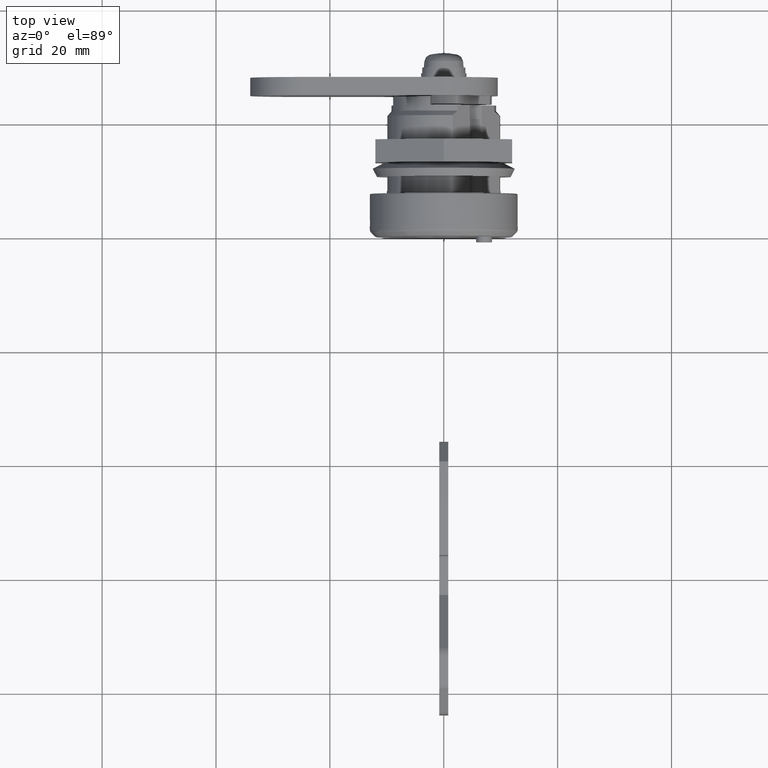
[diagram: clean part render]
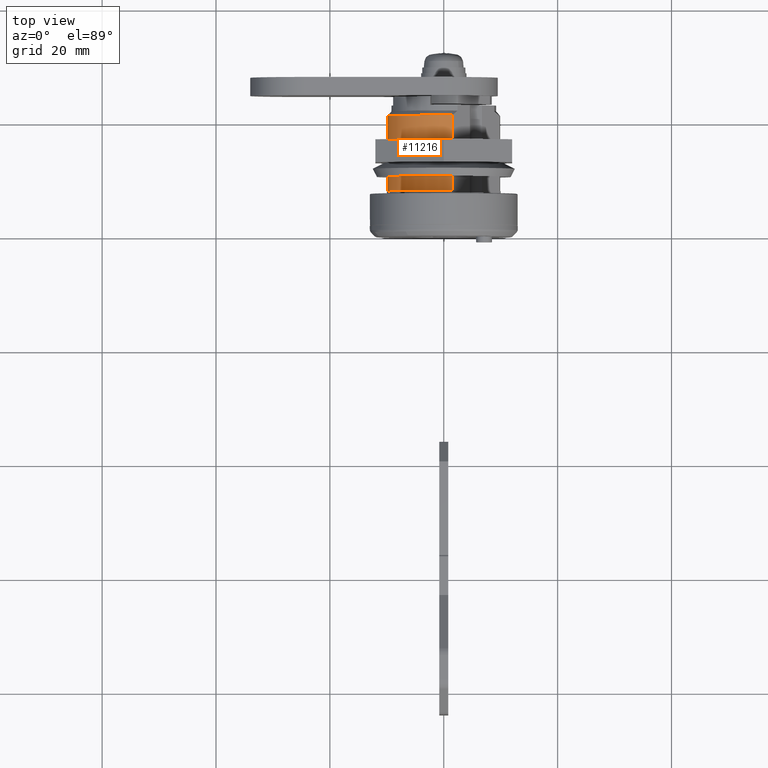
[diagram: same view with one face highlighted and labeled with its STEP entity id]
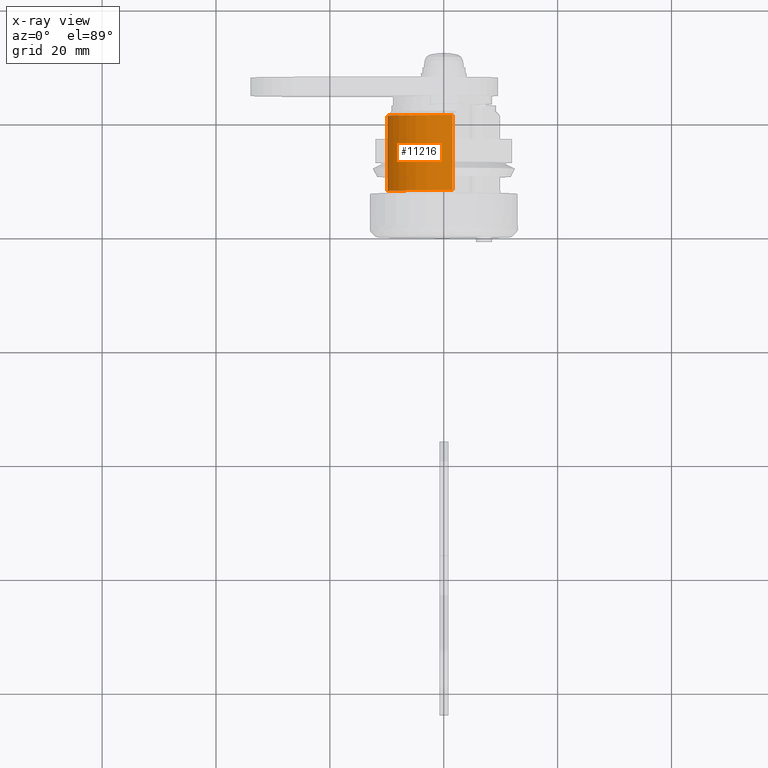
[diagram: x-ray of the same camera — body ghosted, the highlighted face saturated]
A machine part, top view. The second image highlights one B-rep face of the part: STEP entity #11216.
The next image is the same camera in x-ray: the body ghosted, the highlighted face saturated — about 0% of this face is hidden behind the body in this view.
In plain terms, the highlighted face is a freeform B-spline surface patch.
Its self-contained STEP definition (entity closure, byte-faithful):
#10547=CARTESIAN_POINT('',(8.099999999999900,9.780566169406241,-1.533142330596315));
#10548=VERTEX_POINT('',#10547);
#10554=CARTESIAN_POINT('',(21.300000000000001,9.780566169406731,-1.533142330595825));
#10555=VERTEX_POINT('',#10554);
#10556=CARTESIAN_POINT('',(8.099999999999900,9.780566169406241,-1.533142330596315));
#10557=CARTESIAN_POINT('',(21.300000000000001,9.780566169406731,-1.533142330595825));
#10558=QUASI_UNIFORM_CURVE('',1,(#10556,#10557),.UNSPECIFIED.,.F.,.U.);
#10559=EDGE_CURVE('',#10548,#10555,#10558,.T.);
#10739=CARTESIAN_POINT('',(21.300000000000001,-1.533142330593275,9.780566169406709));
#10740=VERTEX_POINT('',#10739);
#10748=CARTESIAN_POINT('',(8.099999999999900,-1.533142330593280,9.780566169406709));
#10749=VERTEX_POINT('',#10748);
#10750=CARTESIAN_POINT('',(21.300000000000001,-1.533142330593275,9.780566169406709));
#10751=CARTESIAN_POINT('',(8.099999999999900,-1.533142330593280,9.780566169406709));
#10752=QUASI_UNIFORM_CURVE('',1,(#10750,#10751),.UNSPECIFIED.,.F.,.U.);
#10753=EDGE_CURVE('',#10740,#10749,#10752,.T.);
#11162=CARTESIAN_POINT('',(21.300000000000001,-1.533142330593275,9.780566169406709));
#11163=CARTESIAN_POINT('',(21.300000000000008,3.440508681321163,10.560205586173382));
#11164=CARTESIAN_POINT('',(21.300000000000001,7.000357133747709,7.000357133745934));
#11165=CARTESIAN_POINT('',(21.300000000000008,10.560205586174257,3.440508681318483));
#11166=CARTESIAN_POINT('',(21.300000000000001,9.780566169406731,-1.533142330595825));
#11174=(BOUNDED_CURVE()B_SPLINE_CURVE(2,(#11162,#11163,#11164,#11165,#11166),.UNSPECIFIED.,.F.,.U.)B_SPLINE_CURVE_WITH_KNOTS((3,2,3),(0.0,0.500000000000000,1.0),.UNSPECIFIED.)CURVE()GEOMETRIC_REPRESENTATION_ITEM()RATIONAL_B_SPLINE_CURVE((1.0,0.891367390267050,1.0,0.891367390267050,1.0))REPRESENTATION_ITEM(''));
#11175=EDGE_CURVE('',#10740,#10555,#11174,.T.);
#11182=CARTESIAN_POINT('',(21.630000000000010,9.731340903788938,-1.819616501970743));
#11183=CARTESIAN_POINT('',(7.761749999999898,9.731340903788938,-1.819616501970743));
#11184=CARTESIAN_POINT('',(21.629999999999999,12.533304602752535,13.165334406709588));
#11185=CARTESIAN_POINT('',(7.761749999999897,12.533304602752535,13.165334406709588));
#11186=CARTESIAN_POINT('',(21.630000000000010,-2.295790541806451,9.630126987124935));
#11187=CARTESIAN_POINT('',(7.761749999999898,-2.295790541806451,9.630126987124935));
#11195=(BOUNDED_SURFACE()B_SPLINE_SURFACE(1,2,((#11182,#11184,#11186),(#11183,#11185,#11187)),.UNSPECIFIED.,.F.,.F.,.U.)B_SPLINE_SURFACE_WITH_KNOTS((2,2),(3,3),(0.0,13.868250000000110),(0.0,21.501045705682099),.UNSPECIFIED.)GEOMETRIC_REPRESENTATION_ITEM()RATIONAL_B_SPLINE_SURFACE(((1.0,0.544639035015027,1.0),(1.0,0.544639035015027,1.0)))REPRESENTATION_ITEM('')SURFACE());
#11196=ORIENTED_EDGE('',*,*,#10559,.F.);
#11197=CARTESIAN_POINT('',(8.099999999999900,-1.533142330593283,9.780566169406708));
#11198=CARTESIAN_POINT('',(8.099999999999900,3.440508681321334,10.560205586173414));
#11199=CARTESIAN_POINT('',(8.099999999999900,7.000357133747907,7.000357133745735));
#11200=CARTESIAN_POINT('',(8.099999999999900,10.560205586174481,3.440508681318055));
#11201=CARTESIAN_POINT('',(8.099999999999900,9.780566169406233,-1.533142330596318));
#11209=(BOUNDED_CURVE()B_SPLINE_CURVE(2,(#11197,#11198,#11199,#11200,#11201),.UNSPECIFIED.,.F.,.U.)B_SPLINE_CURVE_WITH_KNOTS((3,2,3),(0.0,0.500000000000000,1.0),.UNSPECIFIED.)CURVE()GEOMETRIC_REPRESENTATION_ITEM()RATIONAL_B_SPLINE_CURVE((1.0,0.891367390267044,1.0,0.891367390267044,1.0))REPRESENTATION_ITEM(''));
#11210=EDGE_CURVE('',#10749,#10548,#11209,.T.);
#11211=ORIENTED_EDGE('',*,*,#11210,.F.);
#11212=ORIENTED_EDGE('',*,*,#10753,.F.);
#11213=ORIENTED_EDGE('',*,*,#11175,.T.);
#11214=EDGE_LOOP('',(#11196,#11211,#11212,#11213));
#11215=FACE_OUTER_BOUND('',#11214,.T.);
#11216=ADVANCED_FACE('',(#11215),#11195,.T.);